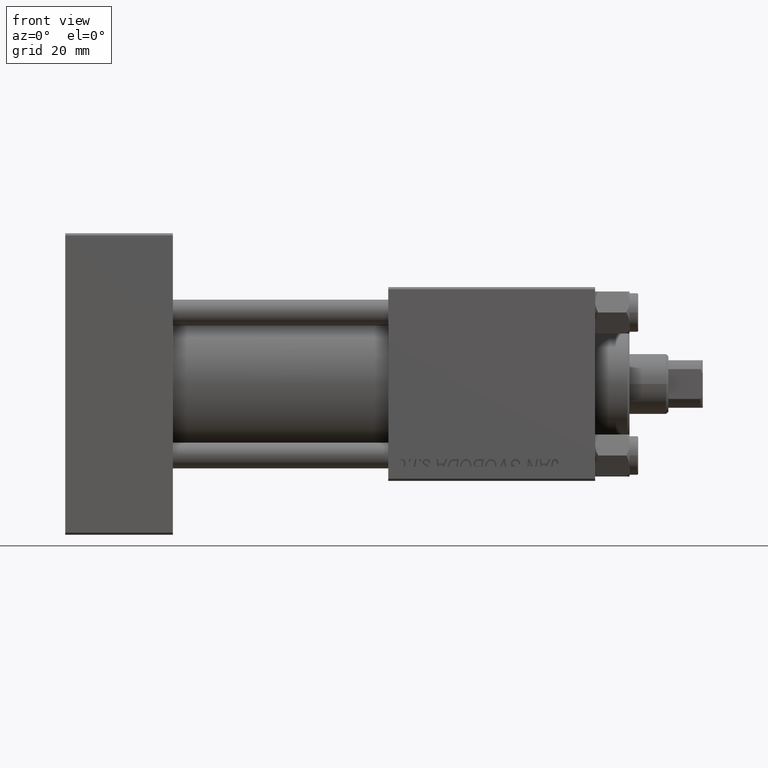
[diagram: clean part render]
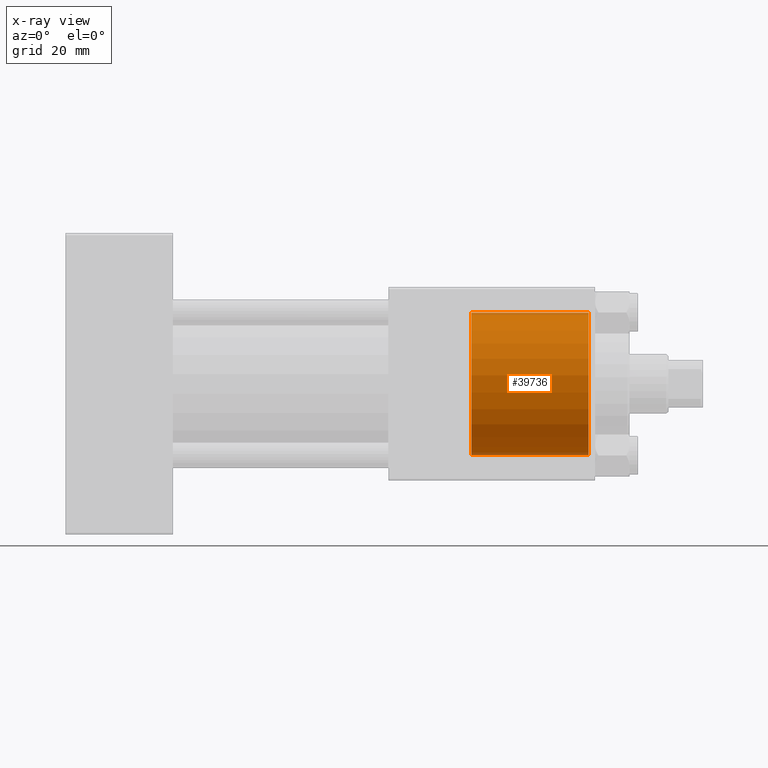
[diagram: x-ray — body ghosted, one internal face saturated and labeled with its STEP entity id]
A machine part, front view, then the same camera in x-ray: the body is ghosted and one INTERNAL B-rep face — a face not visible from any outside direction — is saturated and labeled: STEP entity #39736.
In plain terms, the highlighted cylindrical surface (partial cylindrical patch) has radius 16.5 mm, axis along (1, 0, 0).
Its self-contained STEP definition (entity closure, byte-faithful):
#342 = CARTESIAN_POINT ( 'NONE',  ( 94.30000000000001137, 0.000000000000000000, 0.000000000000000000 ) ) ;
#611 = CARTESIAN_POINT ( 'NONE',  ( 121.5000000000000000, 0.000000000000000000, 0.000000000000000000 ) ) ;
#1409 = CARTESIAN_POINT ( 'NONE',  ( 94.30000000000001137, 0.000000000000000000, 0.000000000000000000 ) ) ;
#2168 = AXIS2_PLACEMENT_3D ( 'NONE', #1409, #44336, #20813 ) ;
#2891 = CARTESIAN_POINT ( 'NONE',  ( 94.30000000000001137, 2.020667218593133100E-15, 16.50000000000000000 ) ) ;
#2893 = EDGE_LOOP ( 'NONE', ( #21841, #17919, #4771, #43478 ) ) ;
#4771 = ORIENTED_EDGE ( 'NONE', *, *, #40826, .T. ) ;
#6226 = CIRCLE ( 'NONE', #38509, 16.50000000000000000 ) ;
#7412 = VERTEX_POINT ( 'NONE', #11070 ) ;
#10772 = CARTESIAN_POINT ( 'NONE',  ( 94.30000000000001137, 0.000000000000000000, -16.50000000000000000 ) ) ;
#11070 = CARTESIAN_POINT ( 'NONE',  ( 121.5000000000000000, 0.000000000000000000, -16.50000000000000000 ) ) ;
#12439 = LINE ( 'NONE', #46822, #13644 ) ;
#13644 = VECTOR ( 'NONE', #27581, 1000.000000000000000 ) ;
#17516 = FACE_OUTER_BOUND ( 'NONE', #2893, .T. ) ;
#17737 = VERTEX_POINT ( 'NONE', #26168 ) ;
#17919 = ORIENTED_EDGE ( 'NONE', *, *, #28700, .T. ) ;
#18266 = DIRECTION ( 'NONE',  ( 1.000000000000000000, -0.000000000000000000, -0.000000000000000000 ) ) ;
#18656 = CARTESIAN_POINT ( 'NONE',  ( 94.30000000000001137, 2.020667218593133100E-15, 16.50000000000000000 ) ) ;
#20795 = VERTEX_POINT ( 'NONE', #18656 ) ;
#20813 = DIRECTION ( 'NONE',  ( 0.000000000000000000, 0.000000000000000000, -1.000000000000000000 ) ) ;
#21841 = ORIENTED_EDGE ( 'NONE', *, *, #36547, .F. ) ;
#22050 = LINE ( 'NONE', #2891, #29361 ) ;
#23884 = EDGE_CURVE ( 'NONE', #37230, #7412, #12439, .T. ) ;
#26168 = CARTESIAN_POINT ( 'NONE',  ( 121.5000000000000000, 2.020667218593133100E-15, 16.50000000000000000 ) ) ;
#27350 = DIRECTION ( 'NONE',  ( 0.000000000000000000, 0.000000000000000000, -1.000000000000000000 ) ) ;
#27359 = DIRECTION ( 'NONE',  ( 0.000000000000000000, 0.000000000000000000, 1.000000000000000000 ) ) ;
#27581 = DIRECTION ( 'NONE',  ( 1.000000000000000000, -0.000000000000000000, -0.000000000000000000 ) ) ;
#28700 = EDGE_CURVE ( 'NONE', #20795, #17737, #22050, .T. ) ;
#29361 = VECTOR ( 'NONE', #18266, 1000.000000000000000 ) ;
#30297 = AXIS2_PLACEMENT_3D ( 'NONE', #342, #31136, #27350 ) ;
#31136 = DIRECTION ( 'NONE',  ( 1.000000000000000000, 0.000000000000000000, 0.000000000000000000 ) ) ;
#34345 = CIRCLE ( 'NONE', #30297, 16.50000000000000000 ) ;
#36000 = CYLINDRICAL_SURFACE ( 'NONE', #2168, 16.50000000000000000 ) ;
#36547 = EDGE_CURVE ( 'NONE', #20795, #37230, #34345, .T. ) ;
#37230 = VERTEX_POINT ( 'NONE', #10772 ) ;
#38509 = AXIS2_PLACEMENT_3D ( 'NONE', #611, #42797, #27359 ) ;
#39736 = ADVANCED_FACE ( 'NONE', ( #17516 ), #36000, .F. ) ;
#40826 = EDGE_CURVE ( 'NONE', #17737, #7412, #6226, .T. ) ;
#42797 = DIRECTION ( 'NONE',  ( 1.000000000000000000, 0.000000000000000000, 0.000000000000000000 ) ) ;
#43478 = ORIENTED_EDGE ( 'NONE', *, *, #23884, .F. ) ;
#44336 = DIRECTION ( 'NONE',  ( 1.000000000000000000, -0.000000000000000000, -0.000000000000000000 ) ) ;
#46822 = CARTESIAN_POINT ( 'NONE',  ( 94.30000000000001137, 0.000000000000000000, -16.50000000000000000 ) ) ;